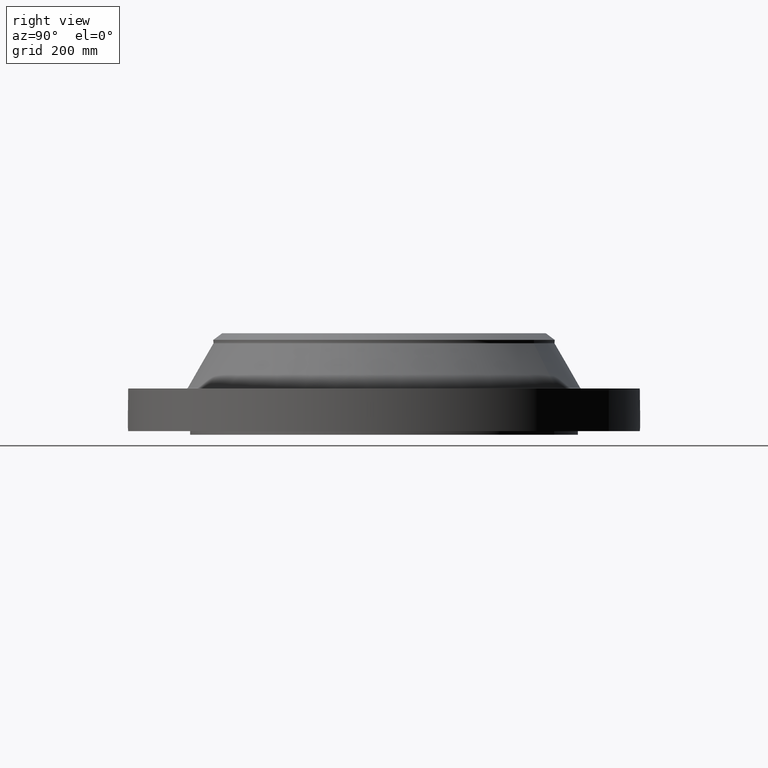
[diagram: clean part render]
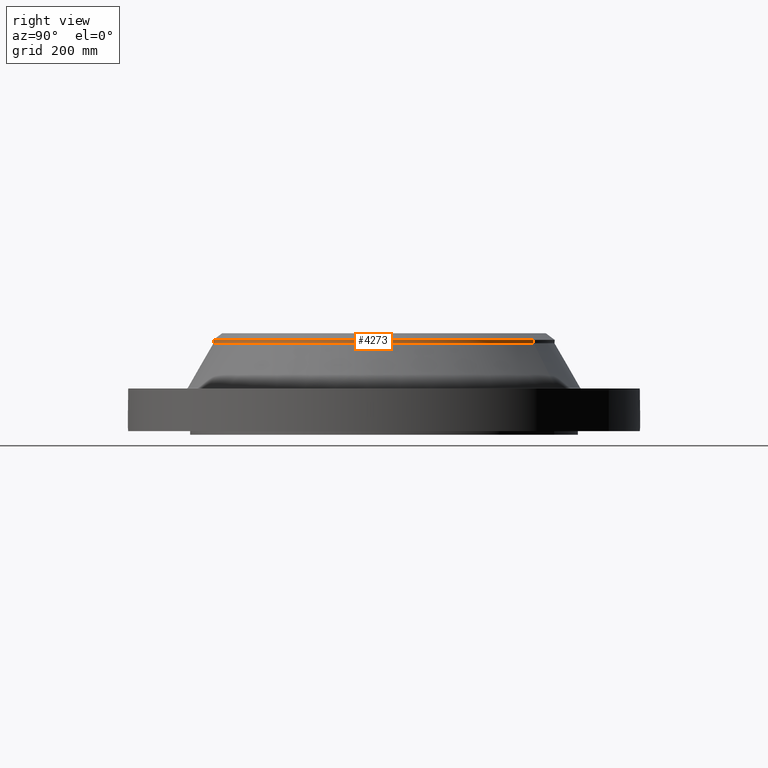
[diagram: same view with one face highlighted and labeled with its STEP entity id]
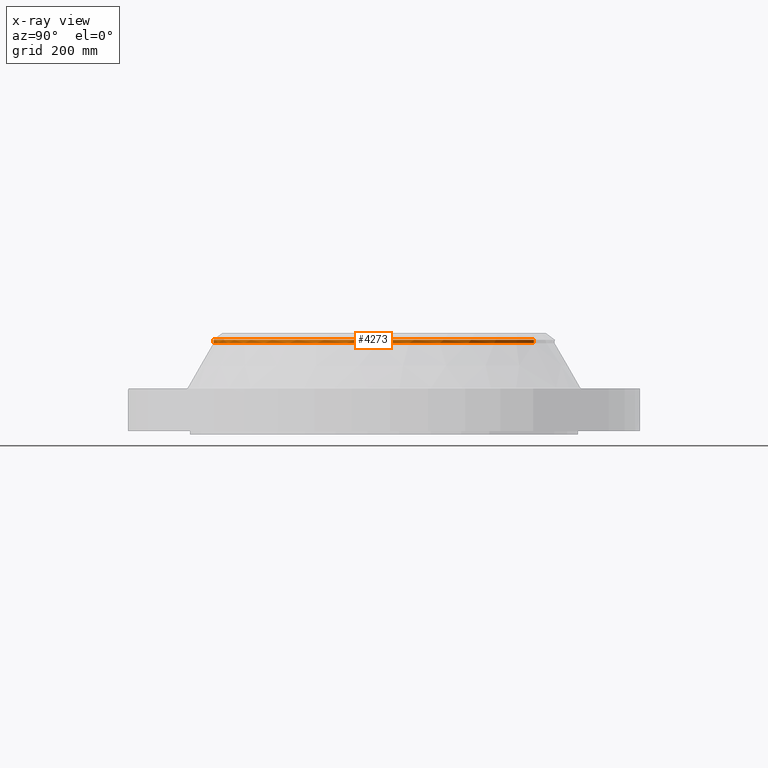
[diagram: x-ray of the same camera — body ghosted, the highlighted face saturated]
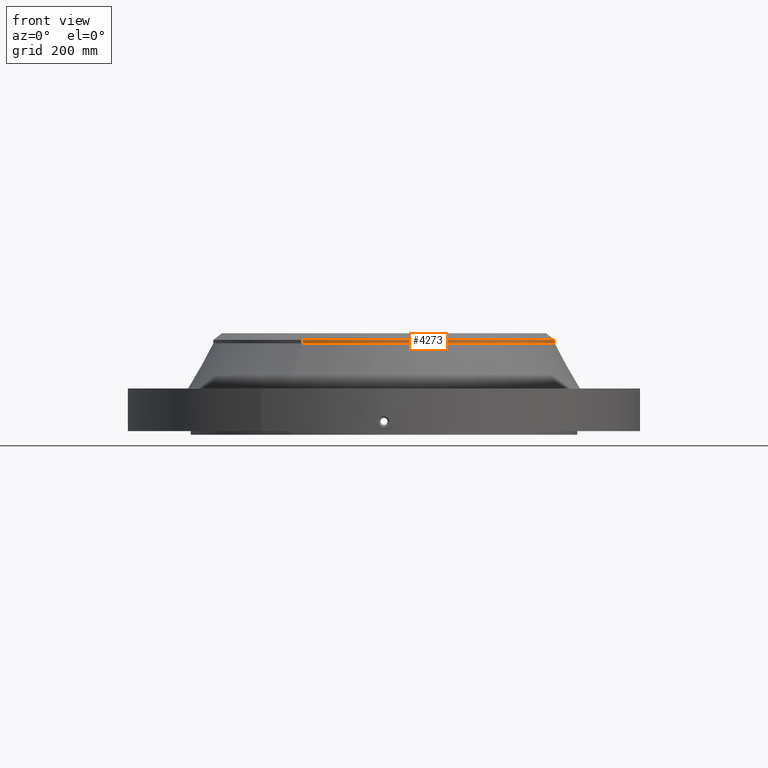
[diagram: same view with one face highlighted and labeled with its STEP entity id]
A machine part, right view. The second image highlights one B-rep face of the part: STEP entity #4273.
The next image is the same camera in x-ray: the body ghosted, the highlighted face saturated — about 0% of this face is hidden behind the body in this view.
A second angle (front view) of the same face is appended — the face is thin or edge-on in the first view.
In plain terms, the highlighted cylindrical surface (partial cylindrical patch) has radius 304.8 mm, axis along (0, 0, -1).
Its self-contained STEP definition (entity closure, byte-faithful):
#3438=AXIS2_PLACEMENT_3D('Circle Axis2P3D',#3436,#3437,$) ;
#4238=AXIS2_PLACEMENT_3D('Cylinder Axis2P3D',#4235,#4236,#4237) ;
#4256=AXIS2_PLACEMENT_3D('Circle Axis2P3D',#4254,#4255,$) ;
#4263=AXIS2_PLACEMENT_3D('Circle Axis2P3D',#4261,#4262,$) ;
#3433=CARTESIAN_POINT('Vertex',(5.75310646327,10.5309907427,6.42627800773)) ;
#3436=CARTESIAN_POINT('Axis2P3D Location',(0.,0.,6.42627800773)) ;
#3440=CARTESIAN_POINT('Vertex',(-5.75310646327,-10.5309907427,6.42627800773)) ;
#4235=CARTESIAN_POINT('Axis2P3D Location',(0.,0.,3.56500000001)) ;
#4240=CARTESIAN_POINT('Line Origine',(-5.75310646327,-10.5309907427,6.54438824395)) ;
#4244=CARTESIAN_POINT('Vertex',(-5.75310646327,-10.5309907427,6.66249848017)) ;
#4247=CARTESIAN_POINT('Line Origine',(5.75310646327,10.5309907427,6.54438824395)) ;
#4251=CARTESIAN_POINT('Vertex',(5.75310646327,10.5309907427,6.66249848017)) ;
#4254=CARTESIAN_POINT('Axis2P3D Location',(0.,0.,6.66249848017)) ;
#4258=CARTESIAN_POINT('Vertex',(5.75310646327,-10.5309907427,6.66249848017)) ;
#4261=CARTESIAN_POINT('Axis2P3D Location',(0.,0.,6.66249848017)) ;
#3437=DIRECTION('Axis2P3D Direction',(0.,0.,-0.0393700787402)) ;
#4236=DIRECTION('Axis2P3D Direction',(0.,0.,-0.0393700787402)) ;
#4237=DIRECTION('Axis2P3D XDirection',(-0.0188750212049,-0.0345504945626,0.)) ;
#4241=DIRECTION('Vector Direction',(0.,0.,-0.0393700787402)) ;
#4248=DIRECTION('Vector Direction',(0.,0.,-0.0393700787402)) ;
#4255=DIRECTION('Axis2P3D Direction',(0.,0.,-0.0393700787402)) ;
#4262=DIRECTION('Axis2P3D Direction',(0.,0.,-0.0393700787402)) ;
#4242=VECTOR('Line Direction',#4241,0.0393700787402) ;
#4249=VECTOR('Line Direction',#4248,0.0393700787402) ;
#4267=ORIENTED_EDGE('',*,*,#4246,.F.) ;
#4268=ORIENTED_EDGE('',*,*,#3442,.F.) ;
#4269=ORIENTED_EDGE('',*,*,#4253,.T.) ;
#4270=ORIENTED_EDGE('',*,*,#4260,.F.) ;
#4271=ORIENTED_EDGE('',*,*,#4265,.T.) ;
#4273=ADVANCED_FACE('PartBody',(#4272),#4239,.T.) ;
#3439=CIRCLE('generated circle',#3438,12.) ;
#4257=CIRCLE('generated circle',#4256,12.) ;
#4264=CIRCLE('generated circle',#4263,12.) ;
#4239=CYLINDRICAL_SURFACE('generated cylinder',#4238,12.) ;
#3442=EDGE_CURVE('',#3434,#3441,#3439,.T.) ;
#4246=EDGE_CURVE('',#3441,#4245,#4243,.F.) ;
#4253=EDGE_CURVE('',#3434,#4252,#4250,.F.) ;
#4260=EDGE_CURVE('',#4259,#4252,#4257,.F.) ;
#4265=EDGE_CURVE('',#4259,#4245,#4264,.T.) ;
#4266=EDGE_LOOP('',(#4267,#4268,#4269,#4270,#4271)) ;
#4272=FACE_OUTER_BOUND('',#4266,.T.) ;
#4243=LINE('Line',#4240,#4242) ;
#4250=LINE('Line',#4247,#4249) ;
#3434=VERTEX_POINT('',#3433) ;
#3441=VERTEX_POINT('',#3440) ;
#4245=VERTEX_POINT('',#4244) ;
#4252=VERTEX_POINT('',#4251) ;
#4259=VERTEX_POINT('',#4258) ;